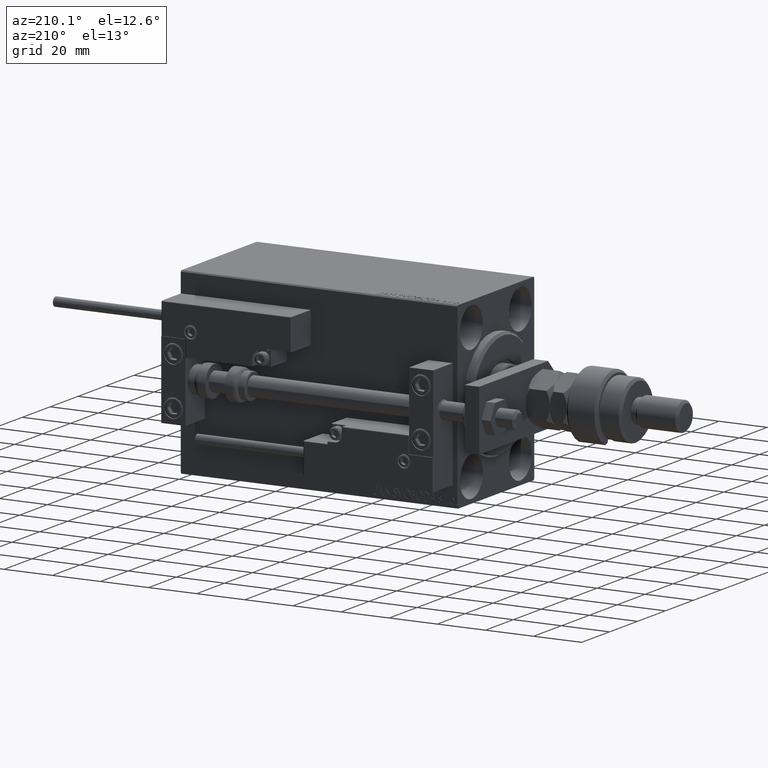
[diagram: clean part render]
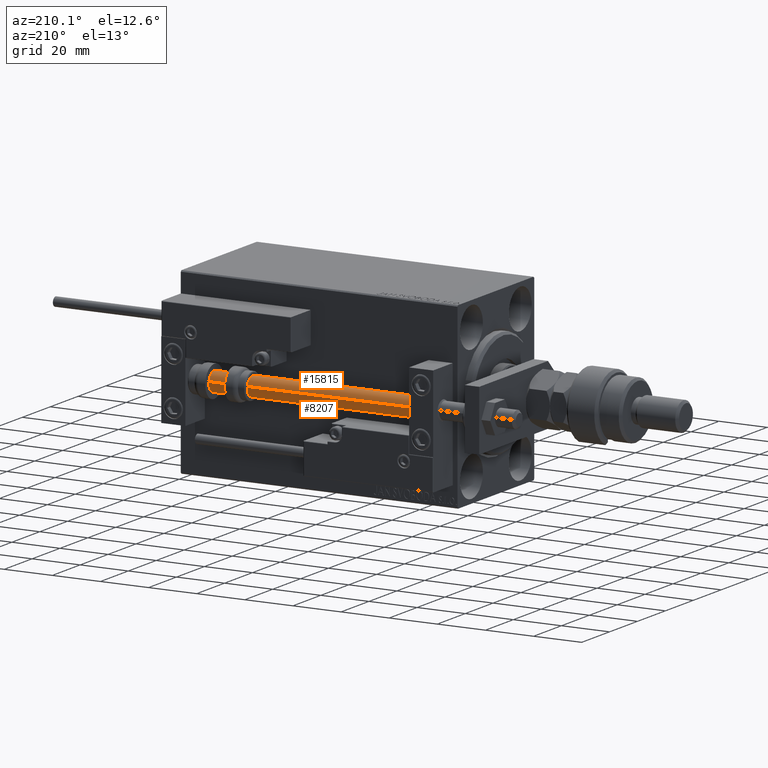
[diagram: same view with one multi-face feature highlighted, each face labeled with its STEP entity id]
A machine part, auxiliary view. The highlighted faces form ONE feature: a constant-radius fillet chain: 2 tangent blend faces with common blend radius 4 mm. The faces share edges in the B-rep.
Their STEP definitions:
[1] entity #8207 (Cylinder):
#405 = CARTESIAN_POINT ( 'NONE',  ( 4.000000000000000000, 4.898587196589412829E-16, 115.0000000000000000 ) ) ;
#3197 = DIRECTION ( 'NONE',  ( -1.000000000000000000, 0.000000000000000000, 0.000000000000000000 ) ) ;
#4130 = VECTOR ( 'NONE', #33854, 1000.000000000000000 ) ;
#5304 = VECTOR ( 'NONE', #50439, 1000.000000000000000 ) ;
#6653 = CARTESIAN_POINT ( 'NONE',  ( 0.000000000000000000, 0.000000000000000000, 115.0000000000000000 ) ) ;
#7424 = CARTESIAN_POINT ( 'NONE',  ( 0.000000000000000000, 0.000000000000000000, 115.0000000000000000 ) ) ;
#7433 = VERTEX_POINT ( 'NONE', #405 ) ;
#8171 = DIRECTION ( 'NONE',  ( -0.000000000000000000, -0.000000000000000000, 1.000000000000000000 ) ) ;
#8207 = ADVANCED_FACE ( 'NONE', ( #10651 ), #43693, .T. ) ;
#10651 = FACE_OUTER_BOUND ( 'NONE', #30108, .T. ) ;
#10693 = LINE ( 'NONE', #43212, #5304 ) ;
#15218 = ORIENTED_EDGE ( 'NONE', *, *, #31506, .T. ) ;
#16081 = VERTEX_POINT ( 'NONE', #43747 ) ;
#16399 = AXIS2_PLACEMENT_3D ( 'NONE', #7424, #20201, #51702 ) ;
#18310 = ORIENTED_EDGE ( 'NONE', *, *, #42372, .F. ) ;
#18339 = CARTESIAN_POINT ( 'NONE',  ( 4.000000000000000000, 4.898587196589412829E-16, 2.000000000000029310 ) ) ;
#20201 = DIRECTION ( 'NONE',  ( 0.000000000000000000, 0.000000000000000000, 1.000000000000000000 ) ) ;
#20533 = EDGE_CURVE ( 'NONE', #39821, #31988, #29452, .T. ) ;
#21497 = CIRCLE ( 'NONE', #16399, 4.000000000000000000 ) ;
#23169 = DIRECTION ( 'NONE',  ( -0.000000000000000000, -0.000000000000000000, -1.000000000000000000 ) ) ;
#25594 = CARTESIAN_POINT ( 'NONE',  ( -4.000000000000000000, 0.000000000000000000, 115.0000000000000000 ) ) ;
#29452 = CIRCLE ( 'NONE', #48202, 4.000000000000000000 ) ;
#30108 = EDGE_LOOP ( 'NONE', ( #18310, #47776, #15218, #33882 ) ) ;
#31506 = EDGE_CURVE ( 'NONE', #16081, #39821, #45333, .T. ) ;
#31988 = VERTEX_POINT ( 'NONE', #18339 ) ;
#32390 = AXIS2_PLACEMENT_3D ( 'NONE', #6653, #23169, #3197 ) ;
#33854 = DIRECTION ( 'NONE',  ( -0.000000000000000000, -0.000000000000000000, -1.000000000000000000 ) ) ;
#33882 = ORIENTED_EDGE ( 'NONE', *, *, #20533, .T. ) ;
#35889 = DIRECTION ( 'NONE',  ( 1.000000000000000000, 0.000000000000000000, 0.000000000000000000 ) ) ;
#39821 = VERTEX_POINT ( 'NONE', #40345 ) ;
#40345 = CARTESIAN_POINT ( 'NONE',  ( -4.000000000000000000, 0.000000000000000000, 2.000000000000029310 ) ) ;
#42372 = EDGE_CURVE ( 'NONE', #7433, #31988, #10693, .T. ) ;
#43212 = CARTESIAN_POINT ( 'NONE',  ( 4.000000000000000000, 4.898587196589412829E-16, 115.0000000000000000 ) ) ;
#43690 = EDGE_CURVE ( 'NONE', #16081, #7433, #21497, .T. ) ;
#43693 = CYLINDRICAL_SURFACE ( 'NONE', #32390, 4.000000000000000000 ) ;
#43747 = CARTESIAN_POINT ( 'NONE',  ( -4.000000000000000000, 0.000000000000000000, 115.0000000000000000 ) ) ;
#45333 = LINE ( 'NONE', #25594, #4130 ) ;
#47776 = ORIENTED_EDGE ( 'NONE', *, *, #43690, .F. ) ;
#48202 = AXIS2_PLACEMENT_3D ( 'NONE', #48704, #8171, #35889 ) ;
#48704 = CARTESIAN_POINT ( 'NONE',  ( 0.000000000000000000, 0.000000000000000000, 2.000000000000029310 ) ) ;
#50439 = DIRECTION ( 'NONE',  ( -0.000000000000000000, -0.000000000000000000, -1.000000000000000000 ) ) ;
#51702 = DIRECTION ( 'NONE',  ( 1.000000000000000000, 0.000000000000000000, 0.000000000000000000 ) ) ;
[2] entity #15815 (Cylinder):
#405 = CARTESIAN_POINT ( 'NONE',  ( 4.000000000000000000, 4.898587196589412829E-16, 115.0000000000000000 ) ) ;
#4130 = VECTOR ( 'NONE', #33854, 1000.000000000000000 ) ;
#4845 = CIRCLE ( 'NONE', #15867, 4.000000000000000000 ) ;
#5304 = VECTOR ( 'NONE', #50439, 1000.000000000000000 ) ;
#7084 = DIRECTION ( 'NONE',  ( 0.000000000000000000, 0.000000000000000000, 1.000000000000000000 ) ) ;
#7433 = VERTEX_POINT ( 'NONE', #405 ) ;
#8688 = DIRECTION ( 'NONE',  ( -1.000000000000000000, 0.000000000000000000, 0.000000000000000000 ) ) ;
#9214 = CARTESIAN_POINT ( 'NONE',  ( 0.000000000000000000, 0.000000000000000000, 115.0000000000000000 ) ) ;
#10693 = LINE ( 'NONE', #43212, #5304 ) ;
#11819 = ORIENTED_EDGE ( 'NONE', *, *, #42372, .T. ) ;
#15815 = ADVANCED_FACE ( 'NONE', ( #24951 ), #29735, .T. ) ;
#15867 = AXIS2_PLACEMENT_3D ( 'NONE', #27333, #7084, #28128 ) ;
#16081 = VERTEX_POINT ( 'NONE', #43747 ) ;
#18339 = CARTESIAN_POINT ( 'NONE',  ( 4.000000000000000000, 4.898587196589412829E-16, 2.000000000000029310 ) ) ;
#23891 = ORIENTED_EDGE ( 'NONE', *, *, #25356, .F. ) ;
#24951 = FACE_OUTER_BOUND ( 'NONE', #28568, .T. ) ;
#25356 = EDGE_CURVE ( 'NONE', #7433, #16081, #4845, .T. ) ;
#25594 = CARTESIAN_POINT ( 'NONE',  ( -4.000000000000000000, 0.000000000000000000, 115.0000000000000000 ) ) ;
#27333 = CARTESIAN_POINT ( 'NONE',  ( 0.000000000000000000, 0.000000000000000000, 115.0000000000000000 ) ) ;
#28128 = DIRECTION ( 'NONE',  ( 1.000000000000000000, 0.000000000000000000, 0.000000000000000000 ) ) ;
#28568 = EDGE_LOOP ( 'NONE', ( #23891, #11819, #30105, #38414 ) ) ;
#29735 = CYLINDRICAL_SURFACE ( 'NONE', #32697, 4.000000000000000000 ) ;
#29836 = AXIS2_PLACEMENT_3D ( 'NONE', #31334, #35058, #39059 ) ;
#30105 = ORIENTED_EDGE ( 'NONE', *, *, #35358, .T. ) ;
#31334 = CARTESIAN_POINT ( 'NONE',  ( 0.000000000000000000, 0.000000000000000000, 2.000000000000029310 ) ) ;
#31506 = EDGE_CURVE ( 'NONE', #16081, #39821, #45333, .T. ) ;
#31988 = VERTEX_POINT ( 'NONE', #18339 ) ;
#32697 = AXIS2_PLACEMENT_3D ( 'NONE', #9214, #34267, #8688 ) ;
#33854 = DIRECTION ( 'NONE',  ( -0.000000000000000000, -0.000000000000000000, -1.000000000000000000 ) ) ;
#34267 = DIRECTION ( 'NONE',  ( -0.000000000000000000, -0.000000000000000000, -1.000000000000000000 ) ) ;
#35058 = DIRECTION ( 'NONE',  ( -0.000000000000000000, -0.000000000000000000, 1.000000000000000000 ) ) ;
#35358 = EDGE_CURVE ( 'NONE', #31988, #39821, #48584, .T. ) ;
#38414 = ORIENTED_EDGE ( 'NONE', *, *, #31506, .F. ) ;
#39059 = DIRECTION ( 'NONE',  ( 1.000000000000000000, 0.000000000000000000, 0.000000000000000000 ) ) ;
#39821 = VERTEX_POINT ( 'NONE', #40345 ) ;
#40345 = CARTESIAN_POINT ( 'NONE',  ( -4.000000000000000000, 0.000000000000000000, 2.000000000000029310 ) ) ;
#42372 = EDGE_CURVE ( 'NONE', #7433, #31988, #10693, .T. ) ;
#43212 = CARTESIAN_POINT ( 'NONE',  ( 4.000000000000000000, 4.898587196589412829E-16, 115.0000000000000000 ) ) ;
#43747 = CARTESIAN_POINT ( 'NONE',  ( -4.000000000000000000, 0.000000000000000000, 115.0000000000000000 ) ) ;
#45333 = LINE ( 'NONE', #25594, #4130 ) ;
#48584 = CIRCLE ( 'NONE', #29836, 4.000000000000000000 ) ;
#50439 = DIRECTION ( 'NONE',  ( -0.000000000000000000, -0.000000000000000000, -1.000000000000000000 ) ) ;